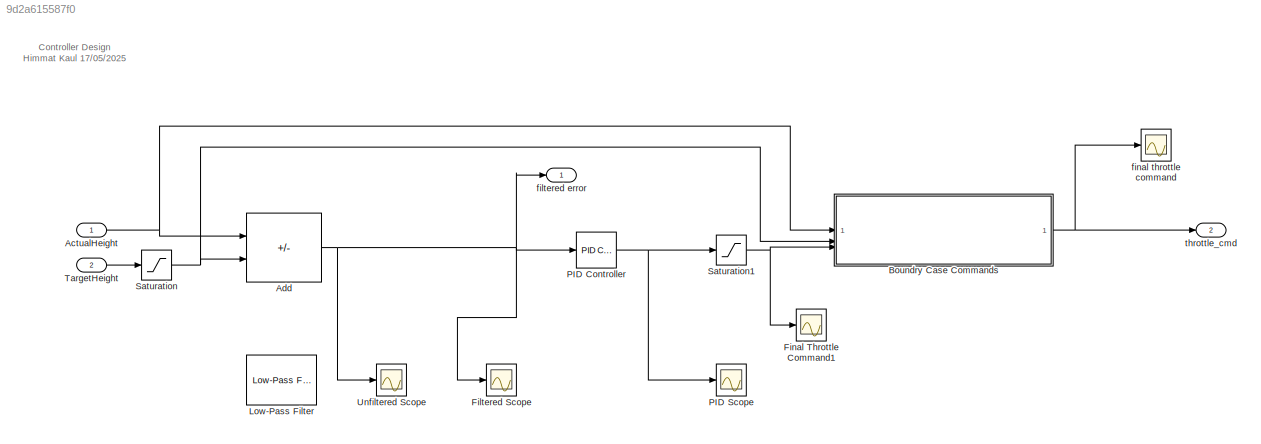
MODEL slx_9d2a615587f0
KIND model
CONFIG AbsTol = auto
CONFIG EnableMultiTasking = off
CONFIG FixedStep = auto
CONFIG MaxStep = auto
CONFIG MinStep = auto
CONFIG RelTol = 1e-3
CONFIG SampleTimeConstraint = Unconstrained
CONFIG SolverName = VariableStepAuto
CONFIG StartTime = 0.0
CONFIG StopTime = 10.0
BLOCK [Inport] ActualHeight
BLOCK [Sum] Add
  IconShape = rectangular
  Inputs = -+
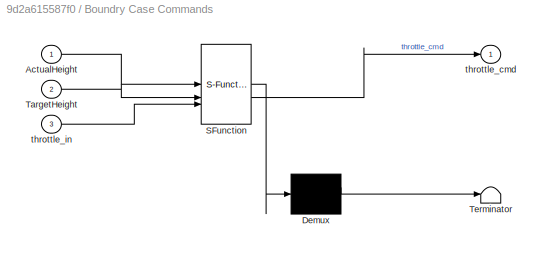
BLOCK [SubSystem] Boundry Case Commands
  ErrorFcn = Stateflow.Translate.translate
  PermitHierarchicalResolution = ExplicitOnly
  SFBlockType = MATLAB Function
  TreatAsAtomicUnit = on
BLOCK [Demux] Boundry Case Commands/ Demux 
  Outputs = 1
BLOCK [S-Function] Boundry Case Commands/ SFunction 
  EnableBusSupport = on
  FunctionName = sf_sfun
  PortCounts = [3 2]
  SFcnIsStateOwnerBlock = off
  SFunctionDeploymentMode = off
  Tag = Stateflow S-Function 1
BLOCK [Terminator] Boundry Case Commands/ Terminator 
BLOCK [Inport] Boundry Case Commands/ActualHeight
BLOCK [Inport] Boundry Case Commands/TargetHeight
  Port = 2
BLOCK [Outport] Boundry Case Commands/throttle_cmd
BLOCK [Inport] Boundry Case Commands/throttle_in
  Port = 3
BLOCK [Scope] Filtered Scope
  Floating = off
  NumInputPorts = 1
  ScopeSpecificationString = Simulink.scopes.TimeScopeBlockCfg('CurrentConfiguration', extmgr.ConfigurationSet(extmgr.Configuration('Core','General UI',true),extmgr.Configuration('Core','Source UI',true),extmgr.Configuration('Sources','WiredSimulink',true,'DataLoggingVariableName','ScopeData1'),extmgr.Configuration('Visuals','Time Domain',true,'SerializedDisplays',{struct('MinYLimReal','-1.68','MaxYLimReal','0.72','YLabelReal...<+1459ch>
BLOCK [Scope] Final Throttle Command1
  Floating = off
  NumInputPorts = 1
  ScopeSpecificationString = Simulink.scopes.TimeScopeBlockCfg('CurrentConfiguration', extmgr.ConfigurationSet(extmgr.Configuration('Core','General UI',true),extmgr.Configuration('Core','Source UI',true),extmgr.Configuration('Sources','WiredSimulink',true,'DataLoggingVariableName','ScopeData1'),extmgr.Configuration('Visuals','Time Domain',true,'SerializedDisplays',{struct('MinYLimReal','-0.125','MaxYLimReal','1.125','YLabelRe...<+1473ch>
BLOCK [Reference] Low-Pass Filter  REF=eeGeneralControl/Low-Pass Filter
(Discrete or Continuous)
  LibrarySourceBlock = ee_sl_lib/General Control/Low-Pass Filter\n(Discrete or Continuous)
  SourceBlock = eeGeneralControl/Low-Pass Filter\n(Discrete or Continuous)
  SourceType = Low-Pass Filter (Discrete or Continuous)
BLOCK [Reference] PID Controller  REF=slpidlib/PID Controller
  LibrarySourceBlock = simulink/Continuous/PID Controller
  SourceBlock = slpidlib/PID Controller
  SourceType = PID 1dof
BLOCK [Scope] PID Scope
  Floating = off
  NumInputPorts = 1
  ScopeSpecificationString = Simulink.scopes.TimeScopeBlockCfg('CurrentConfiguration', extmgr.ConfigurationSet(extmgr.Configuration('Core','General UI',true),extmgr.Configuration('Core','Source UI',true),extmgr.Configuration('Sources','WiredSimulink',true,'DataLoggingVariableName','ScopeData3'),extmgr.Configuration('Visuals','Time Domain',true,'SerializedDisplays',{struct('MinYLimReal','-82.92858','MaxYLimReal','33.82083','YL...<+1494ch>
BLOCK [Saturate] Saturation
  LowerLimit = 0
  UpperLimit = 1.44
BLOCK [Saturate] Saturation1
  LowerLimit = 0
  UpperLimit = 1
BLOCK [Inport] TargetHeight
  Port = 2
BLOCK [Scope] Unfiltered Scope
  Floating = off
  NumInputPorts = 1
  ScopeSpecificationString = Simulink.scopes.TimeScopeBlockCfg('CurrentConfiguration', extmgr.ConfigurationSet(extmgr.Configuration('Core','General UI',true),extmgr.Configuration('Core','Source UI',true),extmgr.Configuration('Sources','WiredSimulink',true),extmgr.Configuration('Visuals','Time Domain',true,'SerializedDisplays',{struct('MinYLimReal','-1.68','MaxYLimReal','0.72','YLabelReal','','MinYLimMag','0.00000','MaxYLimMag...<+1420ch>
BLOCK [Outport] filtered error
BLOCK [Scope] final throttle command
  Floating = off
  NumInputPorts = 1
  ScopeSpecificationString = Simulink.scopes.TimeScopeBlockCfg('CurrentConfiguration', extmgr.ConfigurationSet(extmgr.Configuration('Core','General UI',true),extmgr.Configuration('Core','Source UI',true),extmgr.Configuration('Sources','WiredSimulink',true,'DataLoggingVariableName','ScopeData2'),extmgr.Configuration('Visuals','Time Domain',true,'SerializedDisplays',{struct('MinYLimReal','-0.125','MaxYLimReal','1.125','YLabelRe...<+1457ch>
BLOCK [Outport] throttle_cmd
  Port = 2
ANNOTATION (root): Controller Design Himmat Kaul 17/05/2025
NET ActualHeight:1 -> Add:1, Boundry Case Commands:1
NET Add:1 -> Filtered Scope:1, PID Controller:1, Unfiltered Scope:1, filtered error:1
NET Boundry Case Commands:1 -> final throttle command:1, throttle_cmd:1
NET PID Controller:1 -> PID Scope:1, Saturation1:1
NET Saturation1:1 -> Boundry Case Commands:3, Final Throttle Command1:1
NET Saturation:1 -> Add:2, Boundry Case Commands:2
LINE TargetHeight:1 -> Saturation:1
note: NET lines group one-source signal fan-out (src -> all destinations, sorted); 1:1 wires keep LINE
CHART Boundry Case Commands states=1 transitions=1
  STATE_LABEL 'eML_blk_kernel()'
  STATE_LABEL 'SCRIPT:\nfunction throttle_cmd = BoundryCase(ActualHeight, TargetHeight, throttle_in)\n\n\n% if round(ActualHeight) == 1.20\n% \n%     throttle_cmd = 0.8;\n% \n%     %Tune throttle value\n% \n% elseif round(ActualHeight) == 0.00\n% \n%     throttle_cmd = 0.60;\n% \n%     %Tune throttle values\n% \n% else \n\nif ActualHeight == 1.44\n    throttle_cmd = 0.3;\n% \n% elseif ActualHeight == 0\n%     throttle_cmd = 0.3;\nelse...<+63ch>'
CHART  states=0 transitions=0
